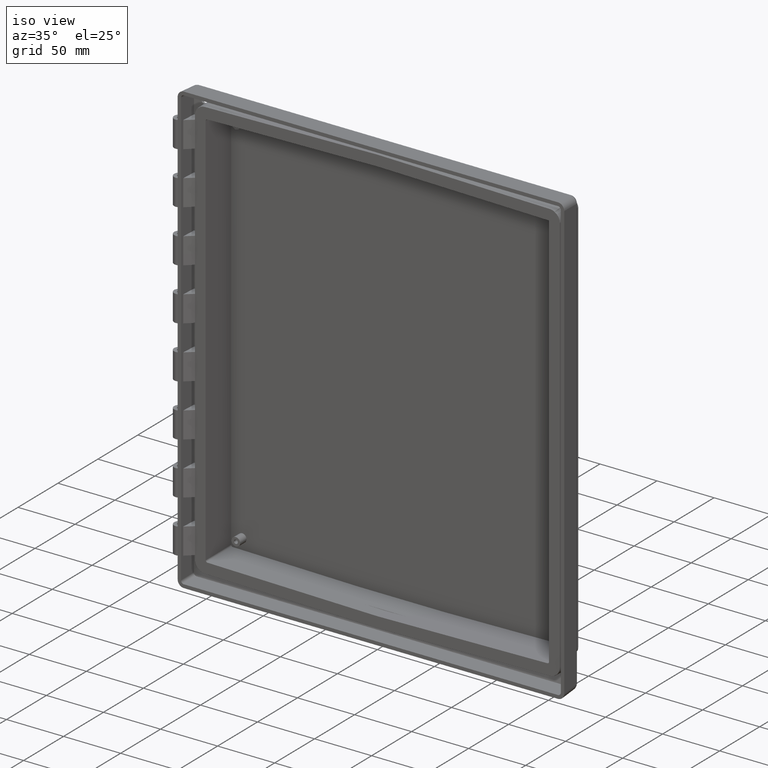
[diagram: clean part render]
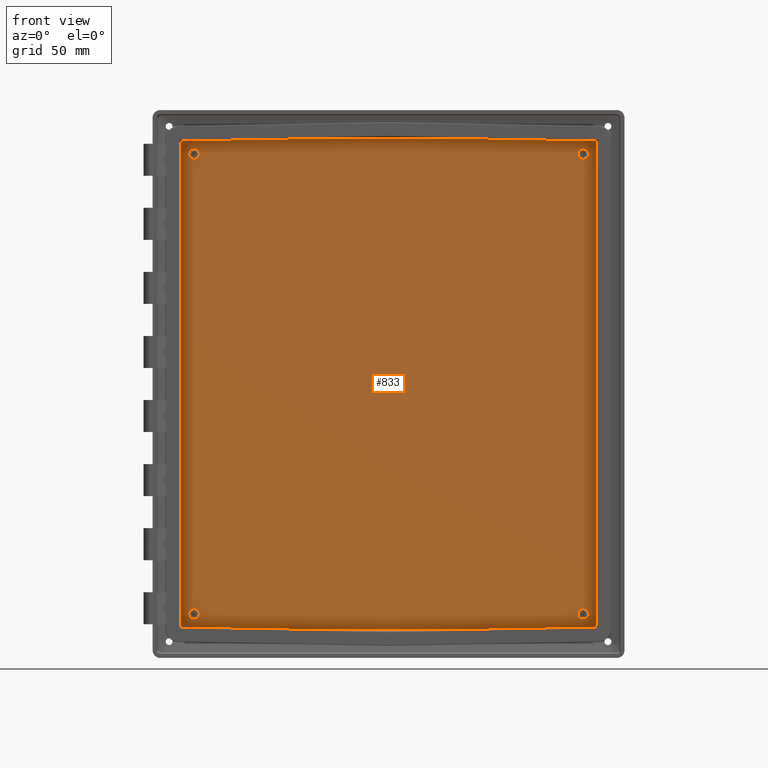
[diagram: tour spotlight — one face highlighted and labeled with its STEP entity id]
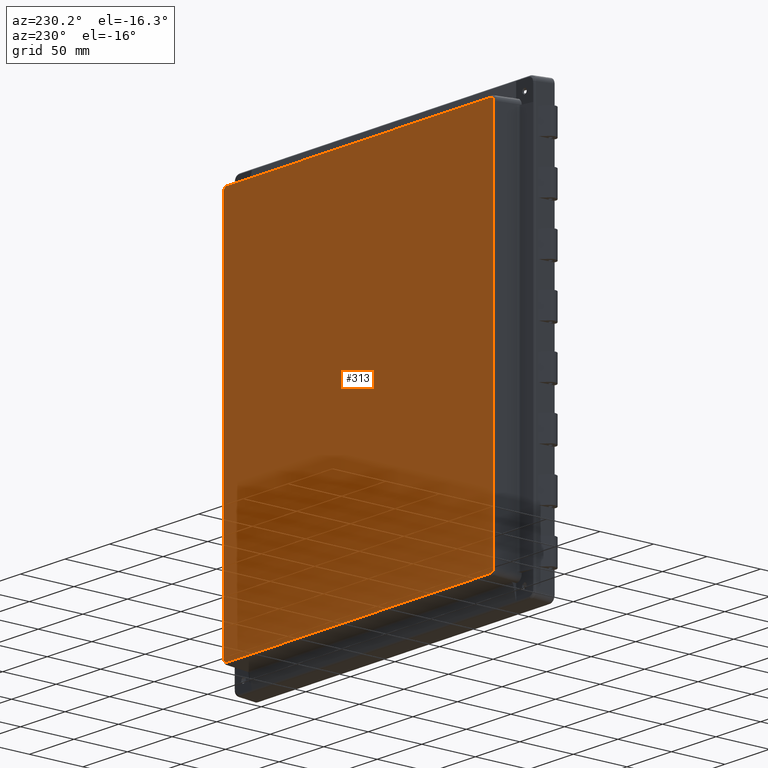
[diagram: tour spotlight — one face highlighted and labeled with its STEP entity id]
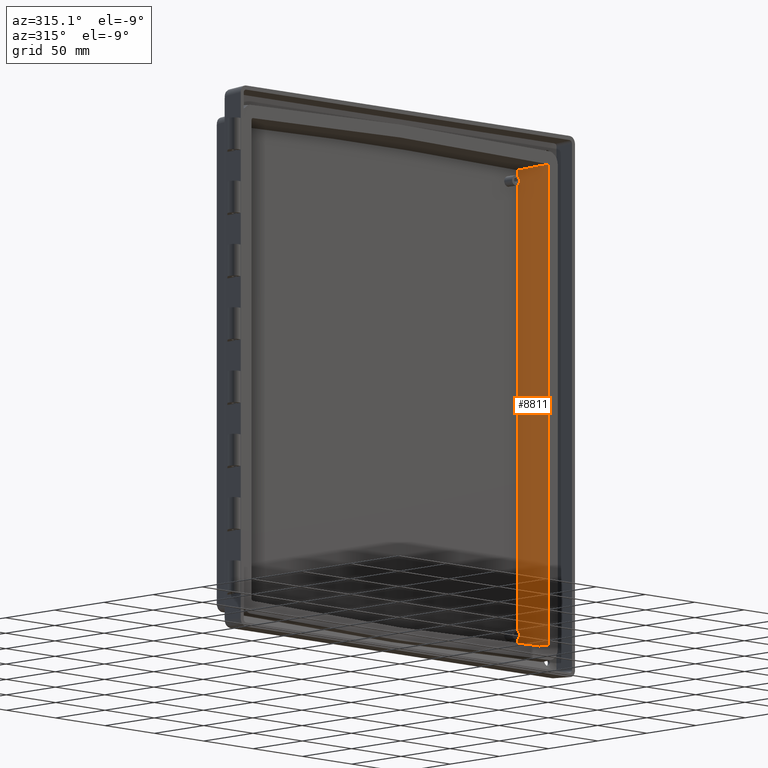
[diagram: tour spotlight — one face highlighted and labeled with its STEP entity id]
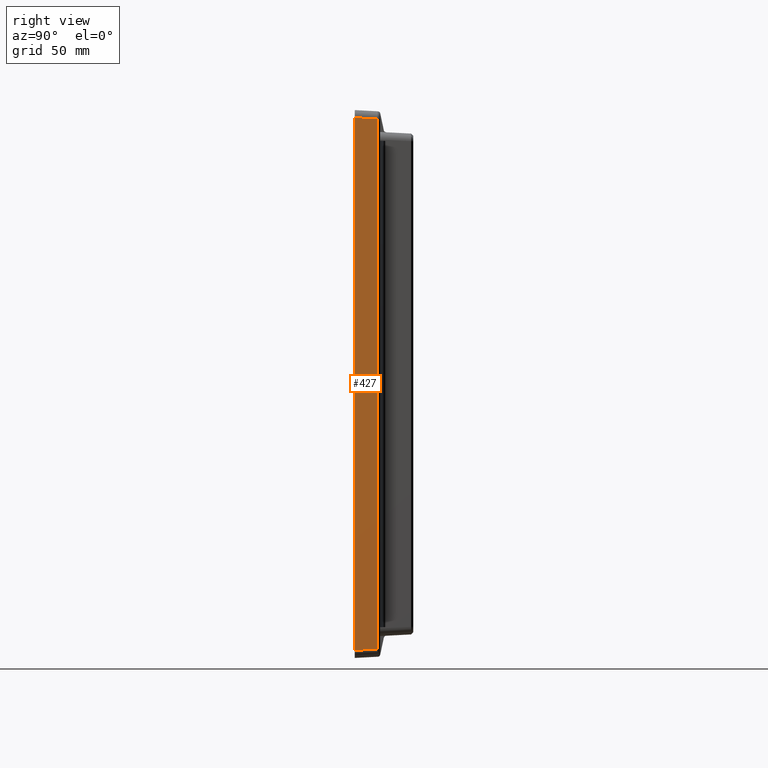
[diagram: tour spotlight — one face highlighted and labeled with its STEP entity id]
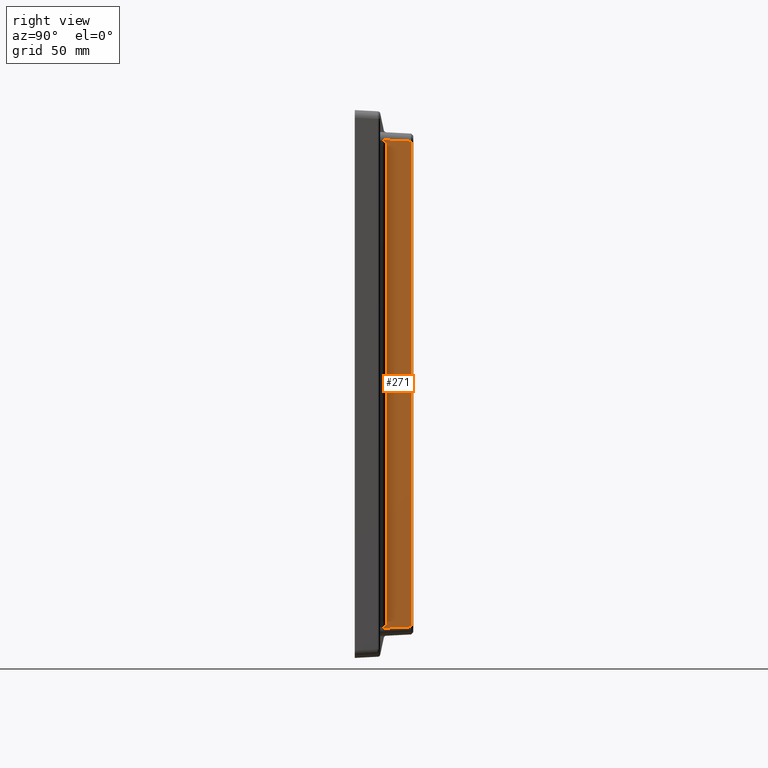
[diagram: tour spotlight — one face highlighted and labeled with its STEP entity id]
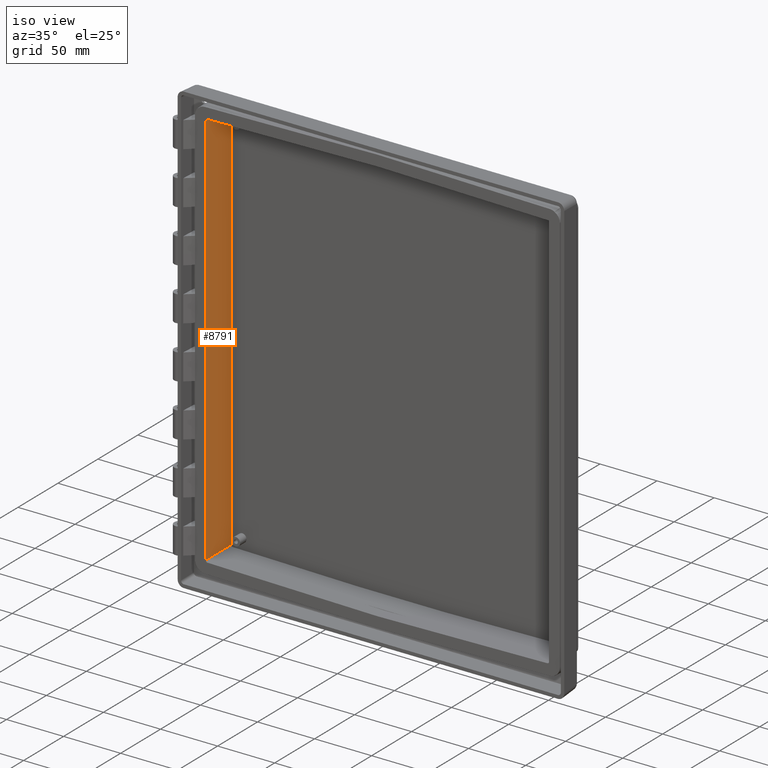
[diagram: tour spotlight — one face highlighted and labeled with its STEP entity id]
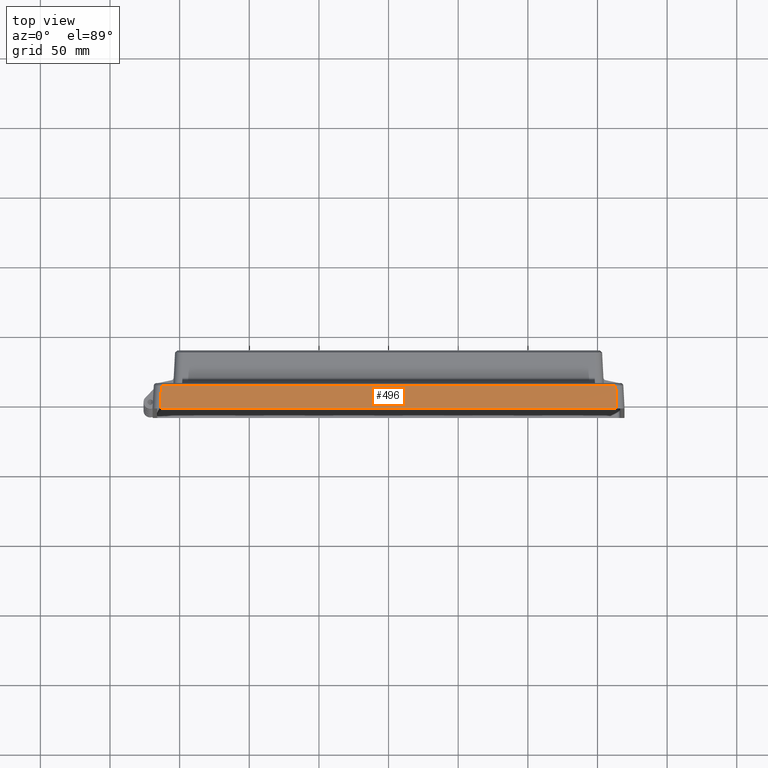
[diagram: tour spotlight — one face highlighted and labeled with its STEP entity id]
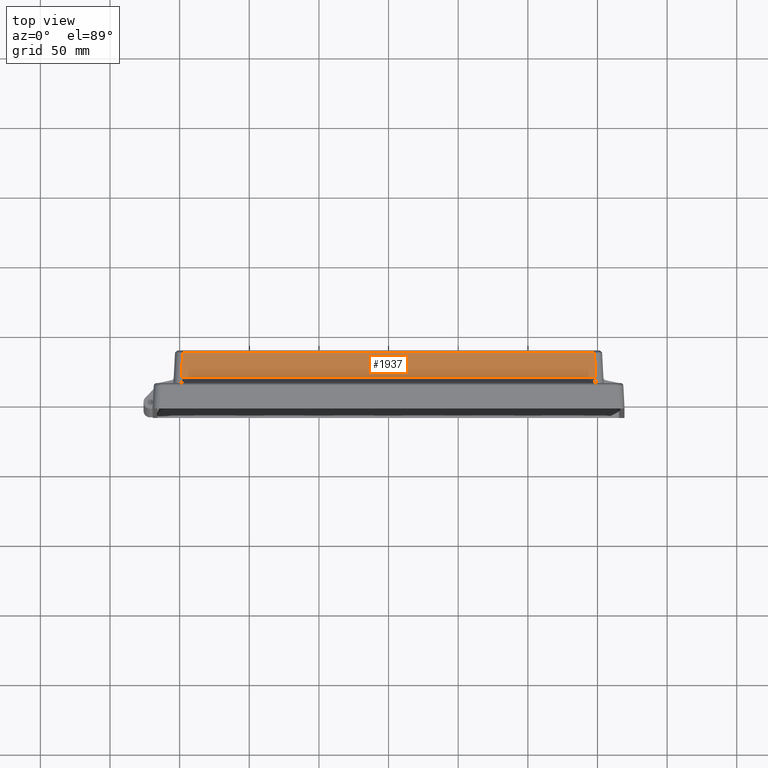
[diagram: tour spotlight — one face highlighted and labeled with its STEP entity id]
A machine part: a face-by-face anatomy tour. The part has 322 B-rep faces; the first image is the clean iso view, then the 8 largest visible faces are spotlighted one at a time (largest first), each with its STEP entity span.

Face 1 — front view, entity #833. In plain terms, the highlighted planar face has unit normal (0, 1, 0).
Definition (entity closure, byte-faithful):
#829 = EDGE_LOOP ( 'NONE', ( #9727, #9728 ) ) ;
#833 = ADVANCED_FACE ( 'NONE', ( #11162, #11161, #11138, #11137, #11136 ), #11134, .F. ) ;
#1398 = VERTEX_POINT ( 'NONE', #12270 ) ;
#1402 = EDGE_CURVE ( 'NONE', #1466, #1398, #12265, .T. ) ;
#1431 = VERTEX_POINT ( 'NONE', #12376 ) ;
#1434 = EDGE_CURVE ( 'NONE', #1431, #1435, #12371, .T. ) ;
#1435 = VERTEX_POINT ( 'NONE', #12366 ) ;
#1446 = VERTEX_POINT ( 'NONE', #12404 ) ;
#1452 = VERTEX_POINT ( 'NONE', #12435 ) ;
#1453 = VERTEX_POINT ( 'NONE', #12434 ) ;
#1455 = EDGE_CURVE ( 'NONE', #1452, #1453, #12433, .T. ) ;
#1466 = VERTEX_POINT ( 'NONE', #12465 ) ;
#1527 = EDGE_CURVE ( 'NONE', #1446, #1528, #12633, .T. ) ;
#1528 = VERTEX_POINT ( 'NONE', #12628 ) ;
#7629 = DIRECTION ( 'NONE',  ( 0.0000000000000000000, 0.0000000000000000000, 1.000000000000000000 ) ) ;
#7630 = DIRECTION ( 'NONE',  ( 0.0000000000000000000, 0.0000000000000000000, 1.000000000000000000 ) ) ;
#7631 = DIRECTION ( 'NONE',  ( -0.0000000000000000000, -1.000000000000000000, -0.0000000000000000000 ) ) ;
#7907 = DIRECTION ( 'NONE',  ( -0.0000000000000000000, -1.000000000000000000, -0.0000000000000000000 ) ) ;
#7908 = CARTESIAN_POINT ( 'NONE',  ( -139.7000000000000500, 30.40000000000000200, 165.0999999999999100 ) ) ;
#7909 = AXIS2_PLACEMENT_3D ( 'NONE', #7908, #7907, #7629 ) ;
#7910 = CIRCLE ( 'NONE', #7909, 3.750000000000003600 ) ;
#7934 =( BOUNDED_CURVE ( )  B_SPLINE_CURVE ( 3, ( #7991, #7990, #7989, #7988 ),
 .UNSPECIFIED., .F., .T. ) 
 B_SPLINE_CURVE_WITH_KNOTS ( ( 4, 4 ),
 ( 2.365519593132455500, 3.917665714047144900 ),
 .UNSPECIFIED. ) 
 CURVE ( )  GEOMETRIC_REPRESENTATION_ITEM ( )  RATIONAL_B_SPLINE_CURVE ( ( 1.000000000000000000, 0.8091131901567116800, 0.8091131901567116800, 1.000000000000000000 ) ) 
 REPRESENTATION_ITEM ( '' )  );
#7945 = CARTESIAN_POINT ( 'NONE',  ( 149.4019717250052400, 30.40000000000000200, -172.9836290982529200 ) ) ;
#7988 = CARTESIAN_POINT ( 'NONE',  ( 149.4019717250052400, 30.40000000000000200, -172.9836290982529200 ) ) ;
#7989 = CARTESIAN_POINT ( 'NONE',  ( 149.4019717250052700, 30.39999999999999900, -173.8498788729834000 ) ) ;
#7990 = CARTESIAN_POINT ( 'NONE',  ( 148.7951659875249400, 30.39999999999999900, -174.4673688775413600 ) ) ;
#7991 = CARTESIAN_POINT ( 'NONE',  ( 147.9290481468308900, 30.40000000000000200, -174.4824870206861100 ) ) ;
#8090 = DIRECTION ( 'NONE',  ( 0.0000000000000000000, 0.0000000000000000000, 1.000000000000000000 ) ) ;
#8091 = DIRECTION ( 'NONE',  ( -0.0000000000000000000, -1.000000000000000000, -0.0000000000000000000 ) ) ;
#8092 = CARTESIAN_POINT ( 'NONE',  ( -139.6999999999998700, 30.40000000000000200, -165.1000000000000200 ) ) ;
#8093 = AXIS2_PLACEMENT_3D ( 'NONE', #8092, #8091, #8090 ) ;
#8094 = CIRCLE ( 'NONE', #8093, 3.750000000000003600 ) ;
#8096 = CARTESIAN_POINT ( 'NONE',  ( -37.96020609379383600, 30.39999999999999900, 176.4020002988028200 ) ) ;
#8097 = CARTESIAN_POINT ( 'NONE',  ( 37.96020609379390000, 30.40000000000000900, 176.4020002988028200 ) ) ;
#8098 = DIRECTION ( 'NONE',  ( -0.9998476951563911600, -0.0000000000000000000, 0.01745240643728388300 ) ) ;
#8099 = VECTOR ( 'NONE', #8098, 1000.000000000000100 ) ;
#8100 = CARTESIAN_POINT ( 'NONE',  ( -0.01852732445308965700, 30.40000000000000200, 177.0649215565098000 ) ) ;
#8101 = LINE ( 'NONE', #8100, #8099 ) ;
#8102 = CARTESIAN_POINT ( 'NONE',  ( 149.4019717250052400, 30.40000000000000600, 174.4567770439946900 ) ) ;
#8103 = DIRECTION ( 'NONE',  ( -0.0000000000000000000, -0.0000000000000000000, 1.000000000000000000 ) ) ;
#8104 = VECTOR ( 'NONE', #8103, 1000.000000000000000 ) ;
#8105 = CARTESIAN_POINT ( 'NONE',  ( 149.4019717250052400, 30.40000000000000200, -175.5000000000000000 ) ) ;
#8106 = LINE ( 'NONE', #8105, #8104 ) ;
#8107 = CARTESIAN_POINT ( 'NONE',  ( 37.96020609379390000, 30.40000000000000900, -176.4020002988028200 ) ) ;
#8108 = DIRECTION ( 'NONE',  ( 1.000000000000000000, -0.0000000000000000000, -0.0000000000000000000 ) ) ;
#8109 = VECTOR ( 'NONE', #8108, 1000.000000000000000 ) ;
#8110 = CARTESIAN_POINT ( 'NONE',  ( -155.0000000000000000, 30.40000000000000200, -176.4020002988028200 ) ) ;
#8111 = LINE ( 'NONE', #8110, #8109 ) ;
#8112 = CARTESIAN_POINT ( 'NONE',  ( -37.96020609379383600, 30.39999999999999900, -176.4020002988028200 ) ) ;
#8113 = DIRECTION ( 'NONE',  ( 0.9998476951563911600, -0.0000000000000000000, -0.01745240643728388300 ) ) ;
#8114 = VECTOR ( 'NONE', #8113, 1000.000000000000100 ) ;
#8115 = CARTESIAN_POINT ( 'NONE',  ( -150.4450357931012800, 30.40000000000000200, -174.4385702929618600 ) ) ;
#8116 = CARTESIAN_POINT ( 'NONE',  ( -147.9290481468308400, 30.40000000000000200, -174.4824870206861100 ) ) ;
#8117 = CARTESIAN_POINT ( 'NONE',  ( -148.7951659875249400, 30.40000000000000600, -174.4673688775413300 ) ) ;
#8118 = CARTESIAN_POINT ( 'NONE',  ( -149.4019717250053200, 30.40000000000000600, -173.8498788729833100 ) ) ;
#8119 = CARTESIAN_POINT ( 'NONE',  ( -149.4019717250052400, 30.40000000000000200, -172.9836290982527800 ) ) ;
#8120 =( BOUNDED_CURVE ( )  B_SPLINE_CURVE ( 3, ( #8119, #8118, #8117, #8116 ),
 .UNSPECIFIED., .F., .T. ) 
 B_SPLINE_CURVE_WITH_KNOTS ( ( 4, 4 ),
 ( 2.365519593132348500, 3.917665714047167600 ),
 .UNSPECIFIED. ) 
 CURVE ( )  GEOMETRIC_REPRESENTATION_ITEM ( )  RATIONAL_B_SPLINE_CURVE ( ( 1.000000000000000000, 0.8091131901566812600, 0.8091131901566812600, 1.000000000000000000 ) ) 
 REPRESENTATION_ITEM ( '' )  );
#8121 = LINE ( 'NONE', #8115, #8114 ) ;
#8122 = CARTESIAN_POINT ( 'NONE',  ( -147.9290481468308400, 30.40000000000000200, -174.4824870206861100 ) ) ;
#8123 = CARTESIAN_POINT ( 'NONE',  ( -149.4019717250052400, 30.40000000000000200, -172.9836290982527800 ) ) ;
#8124 = CARTESIAN_POINT ( 'NONE',  ( -149.4019717250052400, 30.40000000000000200, 172.9836290982529200 ) ) ;
#8125 = DIRECTION ( 'NONE',  ( 0.0000000000000000000, -0.0000000000000000000, -1.000000000000000000 ) ) ;
#8126 = VECTOR ( 'NONE', #8125, 1000.000000000000000 ) ;
#8127 = CARTESIAN_POINT ( 'NONE',  ( -149.4019717250052400, 30.40000000000000200, 175.5000000000000000 ) ) ;
#8128 = LINE ( 'NONE', #8127, #8126 ) ;
#8131 = CARTESIAN_POINT ( 'NONE',  ( 139.6999999999999300, 30.40000000000000200, -165.0999999999999900 ) ) ;
#8132 = AXIS2_PLACEMENT_3D ( 'NONE', #8131, #7631, #7630 ) ;
#8133 = CIRCLE ( 'NONE', #8132, 3.750000000000003600 ) ;
#8134 = CARTESIAN_POINT ( 'NONE',  ( -149.4019717250052400, 30.40000000000000200, 172.9836290982529200 ) ) ;
#8135 = CARTESIAN_POINT ( 'NONE',  ( -149.4019717250052400, 30.40000000000000200, 173.8498788729834000 ) ) ;
#8136 = CARTESIAN_POINT ( 'NONE',  ( -148.7951659875248800, 30.40000000000000200, 174.4673688775413000 ) ) ;
#8137 = CARTESIAN_POINT ( 'NONE',  ( -147.9290481468308700, 30.40000000000000200, 174.4824870206861100 ) ) ;
#8138 =( BOUNDED_CURVE ( )  B_SPLINE_CURVE ( 3, ( #8137, #8136, #8135, #8134 ),
 .UNSPECIFIED., .F., .T. ) 
 B_SPLINE_CURVE_WITH_KNOTS ( ( 4, 4 ),
 ( 5.507112246722229500, 7.059258367636938500 ),
 .UNSPECIFIED. ) 
 CURVE ( )  GEOMETRIC_REPRESENTATION_ITEM ( )  RATIONAL_B_SPLINE_CURVE ( ( 1.000000000000000000, 0.8091131901567069100, 0.8091131901567069100, 1.000000000000000000 ) ) 
 REPRESENTATION_ITEM ( '' )  );
#8139 = CARTESIAN_POINT ( 'NONE',  ( -147.9290481468308700, 30.40000000000000200, 174.4824870206861100 ) ) ;
#8140 = DIRECTION ( 'NONE',  ( -0.9998476951563911600, -0.0000000000000000000, -0.01745240643728388300 ) ) ;
#8141 = VECTOR ( 'NONE', #8140, 1000.000000000000100 ) ;
#8142 = CARTESIAN_POINT ( 'NONE',  ( -150.4450357931012800, 30.40000000000000200, 174.4385702929618600 ) ) ;
#8143 = LINE ( 'NONE', #8142, #8141 ) ;
#8144 = DIRECTION ( 'NONE',  ( -1.000000000000000000, -0.0000000000000000000, -0.0000000000000000000 ) ) ;
#8145 = VECTOR ( 'NONE', #8144, 1000.000000000000000 ) ;
#8146 = CARTESIAN_POINT ( 'NONE',  ( -155.0000000000000000, 30.40000000000000200, 176.4020002988028200 ) ) ;
#8147 = LINE ( 'NONE', #8146, #8145 ) ;
#8148 = CARTESIAN_POINT ( 'NONE',  ( 147.9290481468308900, 30.40000000000000200, -174.4824870206861100 ) ) ;
#8149 = DIRECTION ( 'NONE',  ( 0.9998476951563911600, -0.0000000000000000000, 0.01745240643728388300 ) ) ;
#8150 = VECTOR ( 'NONE', #8149, 1000.000000000000100 ) ;
#8151 = CARTESIAN_POINT ( 'NONE',  ( -0.01852732445308965700, 30.40000000000000200, -177.0649215565098000 ) ) ;
#8152 = LINE ( 'NONE', #8151, #8150 ) ;
#8227 = DIRECTION ( 'NONE',  ( 0.0000000000000000000, 0.0000000000000000000, 1.000000000000000000 ) ) ;
#8228 = DIRECTION ( 'NONE',  ( -0.0000000000000000000, -1.000000000000000000, -0.0000000000000000000 ) ) ;
#8229 = CARTESIAN_POINT ( 'NONE',  ( 139.6999999999999300, 30.40000000000000200, 165.0999999999999900 ) ) ;
#8230 = AXIS2_PLACEMENT_3D ( 'NONE', #8229, #8228, #8227 ) ;
#8231 = CIRCLE ( 'NONE', #8230, 3.750000000000003600 ) ;
#9724 = EDGE_CURVE ( 'NONE', #9825, #9725, #7934, .T. ) ;
#9725 = VERTEX_POINT ( 'NONE', #7945 ) ;
#9726 = ORIENTED_EDGE ( 'NONE', *, *, #9793, .T. ) ;
#9727 = ORIENTED_EDGE ( 'NONE', *, *, #9802, .F. ) ;
#9728 = ORIENTED_EDGE ( 'NONE', *, *, #1527, .F. ) ;
#9793 = EDGE_CURVE ( 'NONE', #9725, #9794, #8106, .T. ) ;
#9794 = VERTEX_POINT ( 'NONE', #8102 ) ;
#9795 = ORIENTED_EDGE ( 'NONE', *, *, #9796, .T. ) ;
#9796 = EDGE_CURVE ( 'NONE', #9794, #9797, #8101, .T. ) ;
#9797 = VERTEX_POINT ( 'NONE', #8097 ) ;
#9798 = VERTEX_POINT ( 'NONE', #8096 ) ;
#9799 = EDGE_LOOP ( 'NONE', ( #9800, #9887 ) ) ;
#9800 = ORIENTED_EDGE ( 'NONE', *, *, #9886, .F. ) ;
#9801 = EDGE_LOOP ( 'NONE', ( #9810, #9814, #9817, #9820, #9823, #9803, #9726, #9795, #9826, #9828, #9831 ) ) ;
#9802 = EDGE_CURVE ( 'NONE', #1528, #1446, #8094, .T. ) ;
#9803 = ORIENTED_EDGE ( 'NONE', *, *, #9724, .T. ) ;
#9810 = ORIENTED_EDGE ( 'NONE', *, *, #9811, .T. ) ;
#9811 = EDGE_CURVE ( 'NONE', #9812, #9813, #8128, .T. ) ;
#9812 = VERTEX_POINT ( 'NONE', #8124 ) ;
#9813 = VERTEX_POINT ( 'NONE', #8123 ) ;
#9814 = ORIENTED_EDGE ( 'NONE', *, *, #9815, .T. ) ;
#9815 = EDGE_CURVE ( 'NONE', #9813, #9816, #8120, .T. ) ;
#9816 = VERTEX_POINT ( 'NONE', #8122 ) ;
#9817 = ORIENTED_EDGE ( 'NONE', *, *, #9818, .T. ) ;
#9818 = EDGE_CURVE ( 'NONE', #9816, #9819, #8121, .T. ) ;
#9819 = VERTEX_POINT ( 'NONE', #8112 ) ;
#9820 = ORIENTED_EDGE ( 'NONE', *, *, #9821, .T. ) ;
#9821 = EDGE_CURVE ( 'NONE', #9819, #9822, #8111, .T. ) ;
#9822 = VERTEX_POINT ( 'NONE', #8107 ) ;
#9823 = ORIENTED_EDGE ( 'NONE', *, *, #9824, .T. ) ;
#9824 = EDGE_CURVE ( 'NONE', #9822, #9825, #8152, .T. ) ;
#9825 = VERTEX_POINT ( 'NONE', #8148 ) ;
#9826 = ORIENTED_EDGE ( 'NONE', *, *, #9827, .T. ) ;
#9827 = EDGE_CURVE ( 'NONE', #9797, #9798, #8147, .T. ) ;
#9828 = ORIENTED_EDGE ( 'NONE', *, *, #9829, .T. ) ;
#9829 = EDGE_CURVE ( 'NONE', #9798, #9830, #8143, .T. ) ;
#9830 = VERTEX_POINT ( 'NONE', #8139 ) ;
#9831 = ORIENTED_EDGE ( 'NONE', *, *, #9832, .T. ) ;
#9832 = EDGE_CURVE ( 'NONE', #9830, #9812, #8138, .T. ) ;
#9833 = EDGE_LOOP ( 'NONE', ( #9834, #9836 ) ) ;
#9834 = ORIENTED_EDGE ( 'NONE', *, *, #9835, .F. ) ;
#9835 = EDGE_CURVE ( 'NONE', #1453, #1452, #8133, .T. ) ;
#9836 = ORIENTED_EDGE ( 'NONE', *, *, #1455, .F. ) ;
#9837 = EDGE_LOOP ( 'NONE', ( #9838, #9846 ) ) ;
#9838 = ORIENTED_EDGE ( 'NONE', *, *, #9839, .F. ) ;
#9839 = EDGE_CURVE ( 'NONE', #1435, #1431, #7910, .T. ) ;
#9846 = ORIENTED_EDGE ( 'NONE', *, *, #1434, .F. ) ;
#9886 = EDGE_CURVE ( 'NONE', #1398, #1466, #8231, .T. ) ;
#9887 = ORIENTED_EDGE ( 'NONE', *, *, #1402, .F. ) ;
#11134 = PLANE ( 'NONE',  #11135 ) ;
#11135 = AXIS2_PLACEMENT_3D ( 'NONE', #11194, #11193, #11192 ) ;
#11136 = FACE_BOUND ( 'NONE', #9837, .T. ) ;
#11137 = FACE_BOUND ( 'NONE', #9833, .T. ) ;
#11138 = FACE_OUTER_BOUND ( 'NONE', #9801, .T. ) ;
#11161 = FACE_BOUND ( 'NONE', #9799, .T. ) ;
#11162 = FACE_BOUND ( 'NONE', #829, .T. ) ;
#11192 = DIRECTION ( 'NONE',  ( 0.0000000000000000000, -0.0000000000000000000, 1.000000000000000000 ) ) ;
#11193 = DIRECTION ( 'NONE',  ( 0.0000000000000000000, 1.000000000000000000, 0.0000000000000000000 ) ) ;
#11194 = CARTESIAN_POINT ( 'NONE',  ( -155.0000000000000000, 30.40000000000000200, 181.5000000000000000 ) ) ;
#12261 = DIRECTION ( 'NONE',  ( 0.0000000000000000000, 0.0000000000000000000, 1.000000000000000000 ) ) ;
#12262 = DIRECTION ( 'NONE',  ( -0.0000000000000000000, -1.000000000000000000, -0.0000000000000000000 ) ) ;
#12263 = CARTESIAN_POINT ( 'NONE',  ( 139.6999999999999300, 30.40000000000000200, 165.0999999999999900 ) ) ;
#12264 = AXIS2_PLACEMENT_3D ( 'NONE', #12263, #12262, #12261 ) ;
#12265 = CIRCLE ( 'NONE', #12264, 3.750000000000003600 ) ;
#12270 = CARTESIAN_POINT ( 'NONE',  ( 139.6999999999999300, 30.40000000000000200, 168.8499999999999900 ) ) ;
#12366 = CARTESIAN_POINT ( 'NONE',  ( -139.7000000000000500, 30.40000000000000200, 168.8499999999999100 ) ) ;
#12367 = DIRECTION ( 'NONE',  ( 0.0000000000000000000, 0.0000000000000000000, 1.000000000000000000 ) ) ;
#12368 = DIRECTION ( 'NONE',  ( -0.0000000000000000000, -1.000000000000000000, -0.0000000000000000000 ) ) ;
#12369 = CARTESIAN_POINT ( 'NONE',  ( -139.7000000000000500, 30.40000000000000200, 165.0999999999999100 ) ) ;
#12370 = AXIS2_PLACEMENT_3D ( 'NONE', #12369, #12368, #12367 ) ;
#12371 = CIRCLE ( 'NONE', #12370, 3.750000000000003600 ) ;
#12376 = CARTESIAN_POINT ( 'NONE',  ( -139.7000000000000500, 30.40000000000000200, 161.3499999999999100 ) ) ;
#12404 = CARTESIAN_POINT ( 'NONE',  ( -139.6999999999998700, 30.40000000000000200, -168.8500000000000200 ) ) ;
#12429 = DIRECTION ( 'NONE',  ( 0.0000000000000000000, 0.0000000000000000000, 1.000000000000000000 ) ) ;
#12430 = DIRECTION ( 'NONE',  ( -0.0000000000000000000, -1.000000000000000000, -0.0000000000000000000 ) ) ;
#12431 = CARTESIAN_POINT ( 'NONE',  ( 139.6999999999999300, 30.40000000000000200, -165.0999999999999900 ) ) ;
#12432 = AXIS2_PLACEMENT_3D ( 'NONE', #12431, #12430, #12429 ) ;
#12433 = CIRCLE ( 'NONE', #12432, 3.750000000000003600 ) ;
#12434 = CARTESIAN_POINT ( 'NONE',  ( 139.6999999999999300, 30.40000000000000200, -161.3499999999999900 ) ) ;
#12435 = CARTESIAN_POINT ( 'NONE',  ( 139.6999999999999300, 30.40000000000000200, -168.8499999999999900 ) ) ;
#12465 = CARTESIAN_POINT ( 'NONE',  ( 139.6999999999999300, 30.40000000000000200, 161.3499999999999900 ) ) ;
#12628 = CARTESIAN_POINT ( 'NONE',  ( -139.6999999999998700, 30.40000000000000200, -161.3500000000000200 ) ) ;
#12629 = DIRECTION ( 'NONE',  ( 0.0000000000000000000, 0.0000000000000000000, 1.000000000000000000 ) ) ;
#12630 = DIRECTION ( 'NONE',  ( -0.0000000000000000000, -1.000000000000000000, -0.0000000000000000000 ) ) ;
#12631 = CARTESIAN_POINT ( 'NONE',  ( -139.6999999999998700, 30.40000000000000200, -165.1000000000000200 ) ) ;
#12632 = AXIS2_PLACEMENT_3D ( 'NONE', #12631, #12630, #12629 ) ;
#12633 = CIRCLE ( 'NONE', #12632, 3.750000000000003600 ) ;

Face 2 — auxiliary view, entity #313. In plain terms, the highlighted planar face has unit normal (0, 1, 0).
Definition (entity closure, byte-faithful):
#297 = EDGE_CURVE ( 'NONE', #324, #326, #3751, .T. ) ;
#298 = ORIENTED_EDGE ( 'NONE', *, *, #299, .T. ) ;
#299 = EDGE_CURVE ( 'NONE', #326, #300, #3749, .T. ) ;
#300 = VERTEX_POINT ( 'NONE', #3723 ) ;
#301 = ORIENTED_EDGE ( 'NONE', *, *, #302, .T. ) ;
#302 = EDGE_CURVE ( 'NONE', #300, #303, #3716, .T. ) ;
#303 = VERTEX_POINT ( 'NONE', #3722 ) ;
#304 = ORIENTED_EDGE ( 'NONE', *, *, #305, .T. ) ;
#305 = EDGE_CURVE ( 'NONE', #303, #306, #3721, .T. ) ;
#306 = VERTEX_POINT ( 'NONE', #3816 ) ;
#307 = ORIENTED_EDGE ( 'NONE', *, *, #308, .T. ) ;
#308 = EDGE_CURVE ( 'NONE', #306, #317, #3809, .T. ) ;
#313 = ADVANCED_FACE ( 'NONE', ( #3766 ), #3764, .T. ) ;
#314 = EDGE_LOOP ( 'NONE', ( #315, #319, #322, #325, #298, #301, #304, #307 ) ) ;
#315 = ORIENTED_EDGE ( 'NONE', *, *, #316, .T. ) ;
#316 = EDGE_CURVE ( 'NONE', #317, #318, #3759, .T. ) ;
#317 = VERTEX_POINT ( 'NONE', #3878 ) ;
#318 = VERTEX_POINT ( 'NONE', #3876 ) ;
#319 = ORIENTED_EDGE ( 'NONE', *, *, #320, .T. ) ;
#320 = EDGE_CURVE ( 'NONE', #318, #321, #3871, .T. ) ;
#321 = VERTEX_POINT ( 'NONE', #3869 ) ;
#322 = ORIENTED_EDGE ( 'NONE', *, *, #323, .T. ) ;
#323 = EDGE_CURVE ( 'NONE', #321, #324, #3872, .T. ) ;
#324 = VERTEX_POINT ( 'NONE', #3838 ) ;
#325 = ORIENTED_EDGE ( 'NONE', *, *, #297, .T. ) ;
#326 = VERTEX_POINT ( 'NONE', #3836 ) ;
#3689 = CARTESIAN_POINT ( 'NONE',  ( 151.6330037502764600, 34.00000000000000000, 174.3041769975908700 ) ) ;
#3690 = CARTESIAN_POINT ( 'NONE',  ( 151.6348593914733000, 34.00000000000000000, 174.8059933008251500 ) ) ;
#3691 = CARTESIAN_POINT ( 'NONE',  ( 151.5372547930608100, 34.00000000000001400, 175.2942391105824000 ) ) ;
#3692 = CARTESIAN_POINT ( 'NONE',  ( 151.1431251170169500, 34.00000000000000000, 176.2435897431427300 ) ) ;
#3693 = CARTESIAN_POINT ( 'NONE',  ( 150.8675752403602500, 34.00000000000000000, 176.6569440721336000 ) ) ;
#3695 = CARTESIAN_POINT ( 'NONE',  ( 150.1568282157539300, 34.00000000000000000, 177.3674593839804500 ) ) ;
#3697 = CARTESIAN_POINT ( 'NONE',  ( 149.7418262364449500, 34.00000000000000700, 177.6440281517859000 ) ) ;
#3699 = CARTESIAN_POINT ( 'NONE',  ( 149.0324585220715200, 34.00000000000000000, 177.9382708566650700 ) ) ;
#3701 = CARTESIAN_POINT ( 'NONE',  ( 148.7905390636747400, 34.00000000000000000, 178.0123885963522200 ) ) ;
#3702 = CARTESIAN_POINT ( 'NONE',  ( 148.3022932539175300, 33.99999999999999300, 178.1099931947647700 ) ) ;
#3703 = CARTESIAN_POINT ( 'NONE',  ( 148.0548802001825400, 34.00000000000000000, 178.1339308130040400 ) ) ;
#3704 = CARTESIAN_POINT ( 'NONE',  ( 147.8041769975909900, 34.00000000000000000, 178.1330037502763700 ) ) ;
#3705 = VECTOR ( 'NONE', #3817, 1000.000000000000000 ) ;
#3708 = CARTESIAN_POINT ( 'NONE',  ( 151.6330037502764600, 34.00000000000000000, -174.2256730632264500 ) ) ;
#3716 = B_SPLINE_CURVE_WITH_KNOTS ( 'NONE', 3,
 ( #3704, #3703, #3702, #3701, #3699, #3697, #3695, #3693, #3692, #3691, #3690, #3689 ),
 .UNSPECIFIED., .F., .F.,
 ( 4, 2, 2, 2, 2, 4 ),
 ( 0.0000000000000000000, 0.1249999999999933400, 0.2499999999999866800, 0.4999999999999911200, 0.7499999999999955600, 1.000000000000000000 ),
 .UNSPECIFIED. ) ;
#3721 = LINE ( 'NONE', #3708, #3705 ) ;
#3722 = CARTESIAN_POINT ( 'NONE',  ( 151.6330037502764600, 34.00000000000000000, 174.3041769975908700 ) ) ;
#3723 = CARTESIAN_POINT ( 'NONE',  ( 147.8041769975909900, 34.00000000000000000, 178.1330037502763700 ) ) ;
#3724 = CARTESIAN_POINT ( 'NONE',  ( -147.8041769975908400, 34.00000000000000000, 178.1330037502763700 ) ) ;
#3725 = CARTESIAN_POINT ( 'NONE',  ( -148.3059933008700600, 33.99999999999999300, 178.1348593914733300 ) ) ;
#3727 = CARTESIAN_POINT ( 'NONE',  ( -148.7942391106272700, 34.00000000000000000, 178.0372547930607300 ) ) ;
#3729 = CARTESIAN_POINT ( 'NONE',  ( -149.7435897430977700, 34.00000000000000700, 177.6431251170167500 ) ) ;
#3731 = CARTESIAN_POINT ( 'NONE',  ( -150.1569440721260100, 34.00000000000000700, 177.3675752403445600 ) ) ;
#3733 = CARTESIAN_POINT ( 'NONE',  ( -150.8674593839879500, 34.00000000000000700, 176.6568282157695100 ) ) ;
#3735 = CARTESIAN_POINT ( 'NONE',  ( -151.1440281517493800, 34.00000000000000000, 176.2418262365046400 ) ) ;
#3736 = CARTESIAN_POINT ( 'NONE',  ( -151.4382708566834300, 34.00000000000000000, 175.5324585220415400 ) ) ;
#3737 = CARTESIAN_POINT ( 'NONE',  ( -151.5123885963523700, 33.99999999999999300, 175.2905390636958900 ) ) ;
#3738 = CARTESIAN_POINT ( 'NONE',  ( -151.6099931947649400, 34.00000000000000000, 174.8022932539387000 ) ) ;
#3739 = CARTESIAN_POINT ( 'NONE',  ( -151.6339308130042100, 34.00000000000000700, 174.5548802001965800 ) ) ;
#3741 = CARTESIAN_POINT ( 'NONE',  ( -151.6330037502763700, 34.00000000000000000, 174.3041769975908700 ) ) ;
#3743 = DIRECTION ( 'NONE',  ( 1.000000000000000000, 0.0000000000000000000, 0.0000000000000000000 ) ) ;
#3745 = VECTOR ( 'NONE', #3743, 1000.000000000000000 ) ;
#3747 = CARTESIAN_POINT ( 'NONE',  ( 147.7256730632264500, 34.00000000000000000, 178.1330037502763700 ) ) ;
#3749 = LINE ( 'NONE', #3747, #3745 ) ;
#3751 = B_SPLINE_CURVE_WITH_KNOTS ( 'NONE', 3,
 ( #3741, #3739, #3738, #3737, #3736, #3735, #3733, #3731, #3729, #3727, #3725, #3724 ),
 .UNSPECIFIED., .F., .F.,
 ( 4, 2, 2, 2, 2, 4 ),
 ( 0.0000000000000000000, 0.1249999999999952800, 0.2499999999999905600, 0.4999999999999936700, 0.7499999999999967800, 1.000000000000000000 ),
 .UNSPECIFIED. ) ;
#3754 = DIRECTION ( 'NONE',  ( 0.0000000000000000000, -0.0000000000000000000, 1.000000000000000000 ) ) ;
#3756 = DIRECTION ( 'NONE',  ( 0.0000000000000000000, 1.000000000000000000, 0.0000000000000000000 ) ) ;
#3758 = AXIS2_PLACEMENT_3D ( 'NONE', #3763, #3756, #3754 ) ;
#3759 = LINE ( 'NONE', #3884, #3883 ) ;
#3763 = CARTESIAN_POINT ( 'NONE',  ( -155.0000000000000000, 34.00000000000000000, 181.5000000000000000 ) ) ;
#3764 = PLANE ( 'NONE',  #3758 ) ;
#3766 = FACE_OUTER_BOUND ( 'NONE', #314, .T. ) ;
#3777 = CARTESIAN_POINT ( 'NONE',  ( 147.8041769975908700, 34.00000000000000000, -178.1330037502764000 ) ) ;
#3779 = CARTESIAN_POINT ( 'NONE',  ( 148.3059933008134100, 34.00000000000000000, -178.1348593914731000 ) ) ;
#3781 = CARTESIAN_POINT ( 'NONE',  ( 148.7942391105706600, 34.00000000000000000, -178.0372547930605500 ) ) ;
#3783 = CARTESIAN_POINT ( 'NONE',  ( 149.7435897431545000, 34.00000000000000000, -177.6431251170169200 ) ) ;
#3785 = CARTESIAN_POINT ( 'NONE',  ( 150.1569440720856200, 34.00000000000000700, -177.3675752403849200 ) ) ;
#3786 = CARTESIAN_POINT ( 'NONE',  ( 150.8674593840284500, 33.99999999999999300, -176.6568282157290100 ) ) ;
#3787 = CARTESIAN_POINT ( 'NONE',  ( 151.1440281517256200, 34.00000000000000700, -176.2418262365283100 ) ) ;
#3788 = CARTESIAN_POINT ( 'NONE',  ( 151.4382708566953400, 34.00000000000000700, -175.5324585220296600 ) ) ;
#3789 = CARTESIAN_POINT ( 'NONE',  ( 151.5123885963524500, 34.00000000000000000, -175.2905390637208400 ) ) ;
#3791 = CARTESIAN_POINT ( 'NONE',  ( 151.6099931947651400, 33.99999999999999300, -174.8022932539635700 ) ) ;
#3794 = CARTESIAN_POINT ( 'NONE',  ( 151.6339308130042700, 34.00000000000000000, -174.5548802002131500 ) ) ;
#3796 = CARTESIAN_POINT ( 'NONE',  ( 151.6330037502764600, 34.00000000000000000, -174.3041769975908200 ) ) ;
#3809 = B_SPLINE_CURVE_WITH_KNOTS ( 'NONE', 3,
 ( #3796, #3794, #3791, #3789, #3788, #3787, #3786, #3785, #3783, #3781, #3779, #3777 ),
 .UNSPECIFIED., .F., .F.,
 ( 4, 2, 2, 2, 2, 4 ),
 ( 0.0000000000000000000, 0.1250000000000066600, 0.2500000000000133200, 0.5000000000000088800, 0.7500000000000044400, 1.000000000000000000 ),
 .UNSPECIFIED. ) ;
#3816 = CARTESIAN_POINT ( 'NONE',  ( 151.6330037502764600, 34.00000000000000000, -174.3041769975908200 ) ) ;
#3817 = DIRECTION ( 'NONE',  ( -1.529232816288094800E-016, 0.0000000000000000000, -1.000000000000000000 ) ) ;
#3836 = CARTESIAN_POINT ( 'NONE',  ( -147.8041769975908400, 34.00000000000000000, 178.1330037502763700 ) ) ;
#3838 = CARTESIAN_POINT ( 'NONE',  ( -151.6330037502763700, 34.00000000000000000, 174.3041769975908700 ) ) ;
#3841 = CARTESIAN_POINT ( 'NONE',  ( -151.6330037502764300, 34.00000000000000000, -174.3041769975908700 ) ) ;
#3843 = CARTESIAN_POINT ( 'NONE',  ( -151.6348593914732400, 34.00000000000000000, -174.8059933008369500 ) ) ;
#3845 = CARTESIAN_POINT ( 'NONE',  ( -151.5372547930607000, 34.00000000000000700, -175.2942391105941900 ) ) ;
#3847 = CARTESIAN_POINT ( 'NONE',  ( -151.1431251170168400, 33.99999999999999300, -176.2435897431308500 ) ) ;
#3849 = CARTESIAN_POINT ( 'NONE',  ( -150.8675752403518100, 34.00000000000001400, -176.6569440721420100 ) ) ;
#3851 = CARTESIAN_POINT ( 'NONE',  ( -150.1568282157623200, 33.99999999999999300, -177.3674593839719800 ) ) ;
#3854 = CARTESIAN_POINT ( 'NONE',  ( -149.7418262364566300, 34.00000000000000700, -177.6440281517740200 ) ) ;
#3856 = CARTESIAN_POINT ( 'NONE',  ( -149.0324585220655500, 34.00000000000000000, -177.9382708566710400 ) ) ;
#3858 = CARTESIAN_POINT ( 'NONE',  ( -148.7905390636872200, 34.00000000000000700, -178.0123885963523400 ) ) ;
#3859 = CARTESIAN_POINT ( 'NONE',  ( -148.3022932539299700, 34.00000000000000000, -178.1099931947648500 ) ) ;
#3860 = CARTESIAN_POINT ( 'NONE',  ( -148.0548802001907800, 34.00000000000001400, -178.1339308130041800 ) ) ;
#3861 = CARTESIAN_POINT ( 'NONE',  ( -147.8041769975909000, 34.00000000000000000, -178.1330037502763400 ) ) ;
#3862 = DIRECTION ( 'NONE',  ( 1.529232816288094800E-016, 0.0000000000000000000, 1.000000000000000000 ) ) ;
#3864 = VECTOR ( 'NONE', #3862, 1000.000000000000000 ) ;
#3865 = CARTESIAN_POINT ( 'NONE',  ( -151.6330037502763700, 34.00000000000000000, 174.2256730632263400 ) ) ;
#3869 = CARTESIAN_POINT ( 'NONE',  ( -151.6330037502764300, 34.00000000000000000, -174.3041769975908700 ) ) ;
#3871 = B_SPLINE_CURVE_WITH_KNOTS ( 'NONE', 3,
 ( #3861, #3860, #3859, #3858, #3856, #3854, #3851, #3849, #3847, #3845, #3843, #3841 ),
 .UNSPECIFIED., .F., .F.,
 ( 4, 2, 2, 2, 2, 4 ),
 ( 0.0000000000000000000, 0.1250000000000019700, 0.2500000000000039400, 0.5000000000000026600, 0.7500000000000013300, 1.000000000000000000 ),
 .UNSPECIFIED. ) ;
#3872 = LINE ( 'NONE', #3865, #3864 ) ;
#3876 = CARTESIAN_POINT ( 'NONE',  ( -147.8041769975909000, 34.00000000000000000, -178.1330037502763400 ) ) ;
#3878 = CARTESIAN_POINT ( 'NONE',  ( 147.8041769975908700, 34.00000000000000000, -178.1330037502764000 ) ) ;
#3881 = DIRECTION ( 'NONE',  ( -1.000000000000000000, 0.0000000000000000000, 0.0000000000000000000 ) ) ;
#3883 = VECTOR ( 'NONE', #3881, 1000.000000000000000 ) ;
#3884 = CARTESIAN_POINT ( 'NONE',  ( -147.7256730632265100, 34.00000000000000000, -178.1330037502763400 ) ) ;

Face 3 — auxiliary view, entity #8811. In plain terms, the highlighted planar face has unit normal (-0.9994, -0.0349, 0).
Definition (entity closure, byte-faithful):
#1899 = EDGE_CURVE ( 'NONE', #9725, #9901, #13381, .T. ) ;
#2488 = VERTEX_POINT ( 'NONE', #4962 ) ;
#3010 = DIRECTION ( 'NONE',  ( 0.03487899055459543100, -0.9988036077738137200, 0.03427548855823892700 ) ) ;
#3011 = VECTOR ( 'NONE', #3010, 1000.000000000000100 ) ;
#3014 = CARTESIAN_POINT ( 'NONE',  ( 150.0439445685257700, 12.01630305219287600, 175.0876420003169500 ) ) ;
#3017 = DIRECTION ( 'NONE',  ( 0.03489949670250104600, -0.9993908270190956500, 0.0000000000000000000 ) ) ;
#3018 = DIRECTION ( 'NONE',  ( -0.9993908270190957600, -0.03489949670250105200, 0.0000000000000000000 ) ) ;
#3019 = CARTESIAN_POINT ( 'NONE',  ( 150.4635631175543700, 3.469446951953614200E-015, -175.5000000000000000 ) ) ;
#3020 = LINE ( 'NONE', #3014, #3011 ) ;
#3022 = AXIS2_PLACEMENT_3D ( 'NONE', #3019, #3018, #3017 ) ;
#3023 = FACE_OUTER_BOUND ( 'NONE', #8812, .T. ) ;
#3028 = PLANE ( 'NONE',  #3022 ) ;
#4962 = CARTESIAN_POINT ( 'NONE',  ( 150.4635631175543700, 3.469446951953614200E-015, 175.5000000000000000 ) ) ;
#7945 = CARTESIAN_POINT ( 'NONE',  ( 149.4019717250052400, 30.40000000000000200, -172.9836290982529200 ) ) ;
#8102 = CARTESIAN_POINT ( 'NONE',  ( 149.4019717250052400, 30.40000000000000600, 174.4567770439946900 ) ) ;
#8103 = DIRECTION ( 'NONE',  ( -0.0000000000000000000, -0.0000000000000000000, 1.000000000000000000 ) ) ;
#8104 = VECTOR ( 'NONE', #8103, 1000.000000000000000 ) ;
#8105 = CARTESIAN_POINT ( 'NONE',  ( 149.4019717250052400, 30.40000000000000200, -175.5000000000000000 ) ) ;
#8106 = LINE ( 'NONE', #8105, #8104 ) ;
#8251 = CARTESIAN_POINT ( 'NONE',  ( 150.4635631175543700, 3.469446951953614200E-015, -174.0268520542580900 ) ) ;
#8252 = DIRECTION ( 'NONE',  ( 0.0000000000000000000, 0.0000000000000000000, 1.000000000000000000 ) ) ;
#8253 = VECTOR ( 'NONE', #8252, 1000.000000000000000 ) ;
#8254 = CARTESIAN_POINT ( 'NONE',  ( 150.4635631175543700, 3.469446951953614200E-015, -175.5000000000000000 ) ) ;
#8255 = LINE ( 'NONE', #8254, #8253 ) ;
#8811 = ADVANCED_FACE ( 'NONE', ( #3023 ), #3028, .T. ) ;
#8812 = EDGE_LOOP ( 'NONE', ( #8813, #8814, #8815, #8816 ) ) ;
#8813 = ORIENTED_EDGE ( 'NONE', *, *, #9793, .F. ) ;
#8814 = ORIENTED_EDGE ( 'NONE', *, *, #1899, .T. ) ;
#8815 = ORIENTED_EDGE ( 'NONE', *, *, #9899, .T. ) ;
#8816 = ORIENTED_EDGE ( 'NONE', *, *, #8817, .F. ) ;
#8817 = EDGE_CURVE ( 'NONE', #9794, #2488, #3020, .T. ) ;
#9725 = VERTEX_POINT ( 'NONE', #7945 ) ;
#9793 = EDGE_CURVE ( 'NONE', #9725, #9794, #8106, .T. ) ;
#9794 = VERTEX_POINT ( 'NONE', #8102 ) ;
#9899 = EDGE_CURVE ( 'NONE', #9901, #2488, #8255, .T. ) ;
#9901 = VERTEX_POINT ( 'NONE', #8251 ) ;
#13378 = DIRECTION ( 'NONE',  ( 0.03487899055459543800, -0.9988036077738138300, -0.03427548855823893400 ) ) ;
#13379 = VECTOR ( 'NONE', #13378, 999.9999999999998900 ) ;
#13380 = CARTESIAN_POINT ( 'NONE',  ( 150.4653242577352900, -0.05043245628703450100, -174.0285827218938300 ) ) ;
#13381 = LINE ( 'NONE', #13380, #13379 ) ;

Face 4 — right view, entity #427. In plain terms, the highlighted planar face has unit normal (0.9986, 0.0523, 0).
Definition (entity closure, byte-faithful):
#1 = EDGE_CURVE ( 'NONE', #10, #2, #9934, .T. ) ;
#2 = VERTEX_POINT ( 'NONE', #9936 ) ;
#10 = VERTEX_POINT ( 'NONE', #9981 ) ;
#427 = ADVANCED_FACE ( 'NONE', ( #10280 ), #10265, .T. ) ;
#428 = EDGE_LOOP ( 'NONE', ( #429, #431, #432, #492, #493, #495 ) ) ;
#429 = ORIENTED_EDGE ( 'NONE', *, *, #430, .T. ) ;
#430 = EDGE_CURVE ( 'NONE', #1331, #10, #10260, .T. ) ;
#431 = ORIENTED_EDGE ( 'NONE', *, *, #1, .T. ) ;
#432 = ORIENTED_EDGE ( 'NONE', *, *, #491, .T. ) ;
#433 = EDGE_CURVE ( 'NONE', #458, #460, #10307, .T. ) ;
#458 = VERTEX_POINT ( 'NONE', #10332 ) ;
#460 = VERTEX_POINT ( 'NONE', #10331 ) ;
#491 = EDGE_CURVE ( 'NONE', #2, #460, #10369, .T. ) ;
#492 = ORIENTED_EDGE ( 'NONE', *, *, #433, .F. ) ;
#493 = ORIENTED_EDGE ( 'NONE', *, *, #494, .T. ) ;
#494 = EDGE_CURVE ( 'NONE', #458, #14153, #10365, .T. ) ;
#495 = ORIENTED_EDGE ( 'NONE', *, *, #1318, .T. ) ;
#1318 = EDGE_CURVE ( 'NONE', #14153, #1331, #12099, .T. ) ;
#1331 = VERTEX_POINT ( 'NONE', #12129 ) ;
#8680 = CARTESIAN_POINT ( 'NONE',  ( 168.5576748016012200, 8.440067571076291100, -190.3152123604508300 ) ) ;
#9932 = CARTESIAN_POINT ( 'NONE',  ( 168.5562397905034100, 8.467449213979881200, 189.2464257797896000 ) ) ;
#9933 = CARTESIAN_POINT ( 'NONE',  ( 168.5562397905034100, 8.467449213979877600, 188.7151442959591900 ) ) ;
#9934 =( BOUNDED_CURVE ( )  B_SPLINE_CURVE ( 3, ( #9933, #9932, #9988, #9987 ),
 .UNSPECIFIED., .F., .T. ) 
 B_SPLINE_CURVE_WITH_KNOTS ( ( 4, 4 ),
 ( 4.346454297330239100, 4.392956178690188700 ),
 .UNSPECIFIED. ) 
 CURVE ( )  GEOMETRIC_REPRESENTATION_ITEM ( )  RATIONAL_B_SPLINE_CURVE ( ( 1.000000000000000000, 0.9998198060372166500, 0.9998198060372166500, 1.000000000000000000 ) ) 
 REPRESENTATION_ITEM ( '' )  );
#9936 = CARTESIAN_POINT ( 'NONE',  ( 168.5576748016011100, 8.440067571076294700, 190.3152123604509700 ) ) ;
#9981 = CARTESIAN_POINT ( 'NONE',  ( 168.5562397905034100, 8.467449213979877600, 188.7151442959591900 ) ) ;
#9987 = CARTESIAN_POINT ( 'NONE',  ( 168.5576748016011100, 8.440067571076294700, 190.3152123604509700 ) ) ;
#9988 = CARTESIAN_POINT ( 'NONE',  ( 168.5567182137449700, 8.458320354713361400, 189.7798779261430600 ) ) ;
#10258 = VECTOR ( 'NONE', #10308, 1000.000000000000000 ) ;
#10259 = CARTESIAN_POINT ( 'NONE',  ( 168.5562397905034100, 8.467449213979877600, 190.2162624004990300 ) ) ;
#10260 = LINE ( 'NONE', #10259, #10258 ) ;
#10261 = DIRECTION ( 'NONE',  ( -0.05233595624294395300, 0.9986295347545739400, 0.0000000000000000000 ) ) ;
#10262 = DIRECTION ( 'NONE',  ( 0.9986295347545739400, 0.05233595624294395300, 2.824717203962385900E-016 ) ) ;
#10263 = AXIS2_PLACEMENT_3D ( 'NONE', #10264, #10262, #10261 ) ;
#10264 = CARTESIAN_POINT ( 'NONE',  ( 169.0000000000000300, 0.0000000000000000000, 196.2500000000000300 ) ) ;
#10265 = PLANE ( 'NONE',  #10263 ) ;
#10280 = FACE_OUTER_BOUND ( 'NONE', #428, .T. ) ;
#10304 = DIRECTION ( 'NONE',  ( -2.828593693312501600E-016, -0.0000000000000000000, 1.000000000000000000 ) ) ;
#10305 = VECTOR ( 'NONE', #10304, 1000.000000000000000 ) ;
#10306 = CARTESIAN_POINT ( 'NONE',  ( 169.4192622342643800, -7.999999999999996400, 196.2500000000000300 ) ) ;
#10307 = LINE ( 'NONE', #10306, #10305 ) ;
#10308 = DIRECTION ( 'NONE',  ( -2.828508372835667400E-016, -1.628011680734760200E-019, 1.000000000000000000 ) ) ;
#10331 = CARTESIAN_POINT ( 'NONE',  ( 169.4192622342643800, -7.999999999999996400, 191.1767997931142100 ) ) ;
#10332 = CARTESIAN_POINT ( 'NONE',  ( 169.4192622342644900, -7.999999999999996400, -191.1767997931139600 ) ) ;
#10362 = DIRECTION ( 'NONE',  ( -0.05226442768871403900, 0.9972646886342372300, 0.05226442768871403200 ) ) ;
#10363 = VECTOR ( 'NONE', #10362, 1000.000000000000200 ) ;
#10364 = CARTESIAN_POINT ( 'NONE',  ( 167.9428616651971400, 20.17140106421353700, -189.7003992240467500 ) ) ;
#10365 = LINE ( 'NONE', #10364, #10363 ) ;
#10366 = DIRECTION ( 'NONE',  ( 0.05226442768871401200, -0.9972646886342372300, 0.05226442768871403900 ) ) ;
#10367 = VECTOR ( 'NONE', #10366, 1000.000000000000200 ) ;
#10368 = CARTESIAN_POINT ( 'NONE',  ( 169.0150030478363300, -0.2862752064970353100, 190.7725406066861900 ) ) ;
#10369 = LINE ( 'NONE', #10368, #10367 ) ;
#12095 = CARTESIAN_POINT ( 'NONE',  ( 168.5562397905035300, 8.467449213979877600, -188.7151442959591300 ) ) ;
#12096 = CARTESIAN_POINT ( 'NONE',  ( 168.5562397905035300, 8.467449213979881200, -189.2464257797895500 ) ) ;
#12097 = CARTESIAN_POINT ( 'NONE',  ( 168.5567182137450600, 8.458320354713359600, -189.7798779261429400 ) ) ;
#12098 = CARTESIAN_POINT ( 'NONE',  ( 168.5576748016012200, 8.440067571076291100, -190.3152123604508300 ) ) ;
#12099 =( BOUNDED_CURVE ( )  B_SPLINE_CURVE ( 3, ( #12098, #12097, #12096, #12095 ),
 .UNSPECIFIED., .F., .F. ) 
 B_SPLINE_CURVE_WITH_KNOTS ( ( 4, 4 ),
 ( 1.890229128489398200, 1.936731009849345100 ),
 .UNSPECIFIED. ) 
 CURVE ( )  GEOMETRIC_REPRESENTATION_ITEM ( )  RATIONAL_B_SPLINE_CURVE ( ( 1.000000000000000000, 0.9998198060372166500, 0.9998198060372166500, 1.000000000000000000 ) ) 
 REPRESENTATION_ITEM ( '' )  );
#12129 = CARTESIAN_POINT ( 'NONE',  ( 168.5562397905035300, 8.467449213979877600, -188.7151442959591300 ) ) ;
#14153 = VERTEX_POINT ( 'NONE', #8680 ) ;

Face 5 — right view, entity #271. In plain terms, the highlighted planar face has unit normal (0.9986, 0.0523, -0).
Definition (entity closure, byte-faithful):
#192 = VERTEX_POINT ( 'NONE', #3252 ) ;
#194 = EDGE_CURVE ( 'NONE', #195, #192, #3251, .T. ) ;
#195 = VERTEX_POINT ( 'NONE', #3245 ) ;
#253 = ORIENTED_EDGE ( 'NONE', *, *, #254, .T. ) ;
#254 = EDGE_CURVE ( 'NONE', #192, #255, #3538, .T. ) ;
#255 = VERTEX_POINT ( 'NONE', #3531 ) ;
#256 = ORIENTED_EDGE ( 'NONE', *, *, #257, .T. ) ;
#257 = EDGE_CURVE ( 'NONE', #255, #258, #3527, .T. ) ;
#258 = VERTEX_POINT ( 'NONE', #3519 ) ;
#259 = ORIENTED_EDGE ( 'NONE', *, *, #260, .T. ) ;
#260 = EDGE_CURVE ( 'NONE', #258, #261, #3516, .T. ) ;
#261 = VERTEX_POINT ( 'NONE', #3509 ) ;
#262 = ORIENTED_EDGE ( 'NONE', *, *, #263, .F. ) ;
#263 = EDGE_CURVE ( 'NONE', #275, #261, #3506, .T. ) ;
#271 = ADVANCED_FACE ( 'NONE', ( #3601 ), #3600, .T. ) ;
#272 = EDGE_LOOP ( 'NONE', ( #273, #277, #280, #282, #253, #256, #259, #262 ) ) ;
#273 = ORIENTED_EDGE ( 'NONE', *, *, #274, .T. ) ;
#274 = EDGE_CURVE ( 'NONE', #275, #276, #3596, .T. ) ;
#275 = VERTEX_POINT ( 'NONE', #3583 ) ;
#276 = VERTEX_POINT ( 'NONE', #3582 ) ;
#277 = ORIENTED_EDGE ( 'NONE', *, *, #278, .T. ) ;
#278 = EDGE_CURVE ( 'NONE', #276, #279, #3576, .T. ) ;
#279 = VERTEX_POINT ( 'NONE', #3571 ) ;
#280 = ORIENTED_EDGE ( 'NONE', *, *, #281, .F. ) ;
#281 = EDGE_CURVE ( 'NONE', #195, #279, #3683, .T. ) ;
#282 = ORIENTED_EDGE ( 'NONE', *, *, #194, .T. ) ;
#3212 = DIRECTION ( 'NONE',  ( 0.0000000000000000000, 0.0000000000000000000, -1.000000000000000000 ) ) ;
#3213 = VECTOR ( 'NONE', #3212, 1000.000000000000000 ) ;
#3215 = CARTESIAN_POINT ( 'NONE',  ( 154.4621361761993800, 10.26305314132471700, -176.3981929649096100 ) ) ;
#3245 = CARTESIAN_POINT ( 'NONE',  ( 154.4621361761993800, 10.26305314132472000, -174.6847589717225700 ) ) ;
#3251 = LINE ( 'NONE', #3215, #3213 ) ;
#3252 = CARTESIAN_POINT ( 'NONE',  ( 154.4621361761993800, 10.26305314132472400, -175.4696737350492100 ) ) ;
#3501 = DIRECTION ( 'NONE',  ( 7.072252150794127100E-014, -0.0000000000000000000, 1.000000000000000000 ) ) ;
#3502 = VECTOR ( 'NONE', #3501, 1000.000000000000000 ) ;
#3504 = CARTESIAN_POINT ( 'NONE',  ( 154.4621361761994400, 10.26305314132471700, 175.4696737350491800 ) ) ;
#3506 = LINE ( 'NONE', #3504, #3502 ) ;
#3509 = CARTESIAN_POINT ( 'NONE',  ( 154.4621361761994400, 10.26305314132471700, 175.4696737350491800 ) ) ;
#3511 = DIRECTION ( 'NONE',  ( 0.05226442768871403200, -0.9972646886342372300, 0.05226442768871403200 ) ) ;
#3512 = VECTOR ( 'NONE', #3511, 1000.000000000000200 ) ;
#3515 = CARTESIAN_POINT ( 'NONE',  ( 154.0234429920451500, 18.63381775214739000, 175.0309805508949000 ) ) ;
#3516 = LINE ( 'NONE', #3515, #3512 ) ;
#3519 = CARTESIAN_POINT ( 'NONE',  ( 153.2966394387411200, 32.50205569786820800, 174.3041769975908400 ) ) ;
#3522 = DIRECTION ( 'NONE',  ( 1.529232816288094600E-016, -0.0000000000000000000, 1.000000000000000000 ) ) ;
#3523 = VECTOR ( 'NONE', #3522, 1000.000000000000000 ) ;
#3525 = CARTESIAN_POINT ( 'NONE',  ( 153.2966394387411200, 32.50205569786820100, 174.2256730632263400 ) ) ;
#3527 = LINE ( 'NONE', #3525, #3523 ) ;
#3531 = CARTESIAN_POINT ( 'NONE',  ( 153.2966394387410700, 32.50205569786820800, -174.3041769975908700 ) ) ;
#3533 = DIRECTION ( 'NONE',  ( -0.05226442768871401900, 0.9972646886342372300, 0.05226442768871403900 ) ) ;
#3535 = VECTOR ( 'NONE', #3533, 1000.000000000000200 ) ;
#3536 = CARTESIAN_POINT ( 'NONE',  ( 155.0150030478363600, -0.2862752064970350800, -176.0225406066861600 ) ) ;
#3538 = LINE ( 'NONE', #3536, #3535 ) ;
#3571 = CARTESIAN_POINT ( 'NONE',  ( 154.2378931350274900, 14.54186526119737800, -174.4605159305507100 ) ) ;
#3573 = DIRECTION ( 'NONE',  ( -1.578409515821900400E-016, 9.383473256558875400E-017, -1.000000000000000000 ) ) ;
#3574 = VECTOR ( 'NONE', #3573, 1000.000000000000000 ) ;
#3575 = CARTESIAN_POINT ( 'NONE',  ( 154.2378931350274900, 14.54186526119736600, -174.5408335138845100 ) ) ;
#3576 = LINE ( 'NONE', #3575, #3574 ) ;
#3582 = CARTESIAN_POINT ( 'NONE',  ( 154.2378931350275500, 14.54186526119733200, 174.4605159305508300 ) ) ;
#3583 = CARTESIAN_POINT ( 'NONE',  ( 154.4621361761993800, 10.26305314132471700, 174.6847589717226900 ) ) ;
#3584 = DIRECTION ( 'NONE',  ( -0.05226442768871461500, 0.9972646886342372300, -0.05226442768871461500 ) ) ;
#3585 = VECTOR ( 'NONE', #3584, 1000.000000000000100 ) ;
#3587 = CARTESIAN_POINT ( 'NONE',  ( 154.4621361761993800, 10.26305314132471700, 174.6847589717226900 ) ) ;
#3591 = DIRECTION ( 'NONE',  ( -0.05233595624294395300, 0.9986295347545739400, 0.0000000000000000000 ) ) ;
#3592 = DIRECTION ( 'NONE',  ( 0.9986295347545739400, 0.05233595624294395300, -1.527137055861206900E-016 ) ) ;
#3593 = AXIS2_PLACEMENT_3D ( 'NONE', #3599, #3592, #3591 ) ;
#3596 = LINE ( 'NONE', #3587, #3585 ) ;
#3599 = CARTESIAN_POINT ( 'NONE',  ( 155.0000000000000600, 0.0000000000000000000, -181.5000000000000000 ) ) ;
#3600 = PLANE ( 'NONE',  #3593 ) ;
#3601 = FACE_OUTER_BOUND ( 'NONE', #272, .T. ) ;
#3680 = DIRECTION ( 'NONE',  ( -0.05226442768871476100, 0.9972646886342373400, 0.05226442768871476100 ) ) ;
#3681 = VECTOR ( 'NONE', #3680, 999.9999999999998900 ) ;
#3682 = CARTESIAN_POINT ( 'NONE',  ( 156.1755701693864200, -22.43121508807622500, -176.3981929649096100 ) ) ;
#3683 = LINE ( 'NONE', #3682, #3681 ) ;

Face 6 — iso view, entity #8791. In plain terms, the highlighted planar face has unit normal (0.9994, -0.0349, 0).
Definition (entity closure, byte-faithful):
#1885 = EDGE_CURVE ( 'NONE', #9812, #2494, #13350, .T. ) ;
#1894 = EDGE_CURVE ( 'NONE', #2560, #9813, #13391, .T. ) ;
#2494 = VERTEX_POINT ( 'NONE', #5047 ) ;
#2560 = VERTEX_POINT ( 'NONE', #5321 ) ;
#2578 = EDGE_CURVE ( 'NONE', #2494, #2560, #5281, .T. ) ;
#2956 = DIRECTION ( 'NONE',  ( 0.03489949670250104600, 0.9993908270190956500, 0.0000000000000000000 ) ) ;
#2958 = DIRECTION ( 'NONE',  ( 0.9993908270190957600, -0.03489949670250105200, 0.0000000000000000000 ) ) ;
#2960 = AXIS2_PLACEMENT_3D ( 'NONE', #2965, #2958, #2956 ) ;
#2965 = CARTESIAN_POINT ( 'NONE',  ( -150.4635631175543700, 3.469446951953614200E-015, 175.5000000000000000 ) ) ;
#2966 = PLANE ( 'NONE',  #2960 ) ;
#2967 = FACE_OUTER_BOUND ( 'NONE', #8792, .T. ) ;
#5047 = CARTESIAN_POINT ( 'NONE',  ( -150.4635631175543700, 3.469446951953614200E-015, 174.0268520542581100 ) ) ;
#5276 = DIRECTION ( 'NONE',  ( 0.0000000000000000000, 0.0000000000000000000, -1.000000000000000000 ) ) ;
#5277 = VECTOR ( 'NONE', #5276, 1000.000000000000000 ) ;
#5279 = CARTESIAN_POINT ( 'NONE',  ( -150.4635631175543700, 3.469446951953614200E-015, 175.5000000000000000 ) ) ;
#5281 = LINE ( 'NONE', #5279, #5277 ) ;
#5321 = CARTESIAN_POINT ( 'NONE',  ( -150.4635631175543700, 3.469446951953614200E-015, -174.0268520542580600 ) ) ;
#8123 = CARTESIAN_POINT ( 'NONE',  ( -149.4019717250052400, 30.40000000000000200, -172.9836290982527800 ) ) ;
#8124 = CARTESIAN_POINT ( 'NONE',  ( -149.4019717250052400, 30.40000000000000200, 172.9836290982529200 ) ) ;
#8125 = DIRECTION ( 'NONE',  ( 0.0000000000000000000, -0.0000000000000000000, -1.000000000000000000 ) ) ;
#8126 = VECTOR ( 'NONE', #8125, 1000.000000000000000 ) ;
#8127 = CARTESIAN_POINT ( 'NONE',  ( -149.4019717250052400, 30.40000000000000200, 175.5000000000000000 ) ) ;
#8128 = LINE ( 'NONE', #8127, #8126 ) ;
#8791 = ADVANCED_FACE ( 'NONE', ( #2967 ), #2966, .T. ) ;
#8792 = EDGE_LOOP ( 'NONE', ( #8793, #8849, #8850, #8851 ) ) ;
#8793 = ORIENTED_EDGE ( 'NONE', *, *, #2578, .T. ) ;
#8849 = ORIENTED_EDGE ( 'NONE', *, *, #1894, .T. ) ;
#8850 = ORIENTED_EDGE ( 'NONE', *, *, #9811, .F. ) ;
#8851 = ORIENTED_EDGE ( 'NONE', *, *, #1885, .T. ) ;
#9811 = EDGE_CURVE ( 'NONE', #9812, #9813, #8128, .T. ) ;
#9812 = VERTEX_POINT ( 'NONE', #8124 ) ;
#9813 = VERTEX_POINT ( 'NONE', #8123 ) ;
#13347 = DIRECTION ( 'NONE',  ( -0.03487899055459543800, -0.9988036077738138300, 0.03427548855823893400 ) ) ;
#13348 = VECTOR ( 'NONE', #13347, 999.9999999999998900 ) ;
#13349 = CARTESIAN_POINT ( 'NONE',  ( -150.4653242577352900, -0.05043245628703370300, 174.0285827218938300 ) ) ;
#13350 = LINE ( 'NONE', #13349, #13348 ) ;
#13388 = DIRECTION ( 'NONE',  ( 0.03487899055459543800, 0.9988036077738138300, 0.03427548855823893400 ) ) ;
#13389 = VECTOR ( 'NONE', #13388, 999.9999999999998900 ) ;
#13390 = CARTESIAN_POINT ( 'NONE',  ( -150.4653242577352900, -0.05043245628703370300, -174.0285827218938300 ) ) ;
#13391 = LINE ( 'NONE', #13390, #13389 ) ;

Face 7 — top view, entity #496. In plain terms, the highlighted planar face has unit normal (0, 0.0523, 0.9986).
Definition (entity closure, byte-faithful):
#19 = VERTEX_POINT ( 'NONE', #9989 ) ;
#33 = EDGE_CURVE ( 'NONE', #19, #41, #10148, .T. ) ;
#41 = VERTEX_POINT ( 'NONE', #10175 ) ;
#436 = VERTEX_POINT ( 'NONE', #10303 ) ;
#438 = EDGE_CURVE ( 'NONE', #436, #439, #10302, .T. ) ;
#439 = VERTEX_POINT ( 'NONE', #10293 ) ;
#479 = EDGE_CURVE ( 'NONE', #41, #1120, #10389, .T. ) ;
#480 = ORIENTED_EDGE ( 'NONE', *, *, #1048, .T. ) ;
#481 = ORIENTED_EDGE ( 'NONE', *, *, #482, .T. ) ;
#482 = EDGE_CURVE ( 'NONE', #1035, #439, #10385, .T. ) ;
#483 = ORIENTED_EDGE ( 'NONE', *, *, #438, .F. ) ;
#496 = ADVANCED_FACE ( 'NONE', ( #10418 ), #10416, .T. ) ;
#497 = EDGE_LOOP ( 'NONE', ( #498, #500, #501, #480, #481, #483 ) ) ;
#498 = ORIENTED_EDGE ( 'NONE', *, *, #499, .T. ) ;
#499 = EDGE_CURVE ( 'NONE', #436, #19, #10417, .T. ) ;
#500 = ORIENTED_EDGE ( 'NONE', *, *, #33, .T. ) ;
#501 = ORIENTED_EDGE ( 'NONE', *, *, #479, .T. ) ;
#1035 = VERTEX_POINT ( 'NONE', #11550 ) ;
#1048 = EDGE_CURVE ( 'NONE', #1120, #1035, #11632, .T. ) ;
#1120 = VERTEX_POINT ( 'NONE', #4333 ) ;
#1311 = CARTESIAN_POINT ( 'NONE',  ( -163.0652123604508000, 8.440067571076292900, 195.8076748016011100 ) ) ;
#4333 = CARTESIAN_POINT ( 'NONE',  ( -161.4651442959591600, 8.467449213979877600, 195.8062397905034100 ) ) ;
#9989 = CARTESIAN_POINT ( 'NONE',  ( 163.0652123604509700, 8.440067571076292900, 195.8076748016011100 ) ) ;
#10144 = CARTESIAN_POINT ( 'NONE',  ( 161.4651442959592200, 8.467449213979877600, 195.8062397905034100 ) ) ;
#10145 = CARTESIAN_POINT ( 'NONE',  ( 161.9964257797896600, 8.467449213979881200, 195.8062397905034100 ) ) ;
#10146 = CARTESIAN_POINT ( 'NONE',  ( 162.5298779261430600, 8.458320354713361400, 195.8067182137449400 ) ) ;
#10147 = CARTESIAN_POINT ( 'NONE',  ( 163.0652123604509700, 8.440067571076292900, 195.8076748016011100 ) ) ;
#10148 =( BOUNDED_CURVE ( )  B_SPLINE_CURVE ( 3, ( #10147, #10146, #10145, #10144 ),
 .UNSPECIFIED., .F., .T. ) 
 B_SPLINE_CURVE_WITH_KNOTS ( ( 4, 4 ),
 ( 1.890229128489397500, 1.936731009849346900 ),
 .UNSPECIFIED. ) 
 CURVE ( )  GEOMETRIC_REPRESENTATION_ITEM ( )  RATIONAL_B_SPLINE_CURVE ( ( 1.000000000000000000, 0.9998198060372166500, 0.9998198060372166500, 1.000000000000000000 ) ) 
 REPRESENTATION_ITEM ( '' )  );
#10175 = CARTESIAN_POINT ( 'NONE',  ( 161.4651442959592200, 8.467449213979877600, 195.8062397905034100 ) ) ;
#10293 = CARTESIAN_POINT ( 'NONE',  ( -163.9267997931139900, -7.999999999999996400, 196.6692622342643800 ) ) ;
#10294 = DIRECTION ( 'NONE',  ( -1.000000000000000000, -0.0000000000000000000, -0.0000000000000000000 ) ) ;
#10295 = VECTOR ( 'NONE', #10294, 1000.000000000000000 ) ;
#10296 = CARTESIAN_POINT ( 'NONE',  ( 169.0000000000000300, -7.999999999999996400, 196.6692622342643800 ) ) ;
#10302 = LINE ( 'NONE', #10296, #10295 ) ;
#10303 = CARTESIAN_POINT ( 'NONE',  ( 163.9267997931141800, -7.999999999999996400, 196.6692622342643800 ) ) ;
#10382 = DIRECTION ( 'NONE',  ( -0.05226442768871401200, -0.9972646886342372300, 0.05226442768871402500 ) ) ;
#10383 = VECTOR ( 'NONE', #10382, 1000.000000000000200 ) ;
#10384 = CARTESIAN_POINT ( 'NONE',  ( -162.5992698109354800, 17.33078104700657800, 195.3417322520857900 ) ) ;
#10385 = LINE ( 'NONE', #10384, #10383 ) ;
#10386 = DIRECTION ( 'NONE',  ( -1.000000000000000000, 0.0000000000000000000, -0.0000000000000000000 ) ) ;
#10387 = VECTOR ( 'NONE', #10386, 1000.000000000000000 ) ;
#10388 = CARTESIAN_POINT ( 'NONE',  ( -162.9662624004988900, 8.467449213979877600, 195.8062397905034100 ) ) ;
#10389 = LINE ( 'NONE', #10388, #10387 ) ;
#10409 = DIRECTION ( 'NONE',  ( -0.05226442768871402500, 0.9972646886342372300, -0.05226442768871402500 ) ) ;
#10410 = VECTOR ( 'NONE', #10409, 1000.000000000000200 ) ;
#10411 = CARTESIAN_POINT ( 'NONE',  ( 163.5225406066861900, -0.2862752064970360300, 196.2650030478363300 ) ) ;
#10412 = DIRECTION ( 'NONE',  ( 0.0000000000000000000, -0.9986295347545739400, 0.05233595624294395300 ) ) ;
#10413 = DIRECTION ( 'NONE',  ( 0.0000000000000000000, 0.05233595624294395300, 0.9986295347545739400 ) ) ;
#10414 = CARTESIAN_POINT ( 'NONE',  ( 169.0000000000000300, 0.0000000000000000000, 196.2500000000000300 ) ) ;
#10415 = AXIS2_PLACEMENT_3D ( 'NONE', #10414, #10413, #10412 ) ;
#10416 = PLANE ( 'NONE',  #10415 ) ;
#10417 = LINE ( 'NONE', #10411, #10410 ) ;
#10418 = FACE_OUTER_BOUND ( 'NONE', #497, .T. ) ;
#11183 = CARTESIAN_POINT ( 'NONE',  ( -161.9964257797895800, 8.467449213979877600, 195.8062397905034100 ) ) ;
#11423 = CARTESIAN_POINT ( 'NONE',  ( -162.5298779261429200, 8.458320354713356100, 195.8067182137449400 ) ) ;
#11550 = CARTESIAN_POINT ( 'NONE',  ( -163.0652123604508000, 8.440067571076292900, 195.8076748016011100 ) ) ;
#11630 = CARTESIAN_POINT ( 'NONE',  ( -161.4651442959591600, 8.467449213979877600, 195.8062397905034100 ) ) ;
#11632 =( BOUNDED_CURVE ( )  B_SPLINE_CURVE ( 3, ( #11630, #11183, #11423, #1311 ),
 .UNSPECIFIED., .F., .T. ) 
 B_SPLINE_CURVE_WITH_KNOTS ( ( 4, 4 ),
 ( 4.346454297330240000, 4.392956178690186100 ),
 .UNSPECIFIED. ) 
 CURVE ( )  GEOMETRIC_REPRESENTATION_ITEM ( )  RATIONAL_B_SPLINE_CURVE ( ( 1.000000000000000000, 0.9998198060372166500, 0.9998198060372166500, 1.000000000000000000 ) ) 
 REPRESENTATION_ITEM ( '' )  );

Face 8 — top view, entity #1937. In plain terms, the highlighted planar face has unit normal (0, 0.0523, 0.9986).
Definition (entity closure, byte-faithful):
#269 = ORIENTED_EDGE ( 'NONE', *, *, #270, .T. ) ;
#270 = EDGE_CURVE ( 'NONE', #14086, #1941, #3606, .T. ) ;
#1917 = ORIENTED_EDGE ( 'NONE', *, *, #1918, .F. ) ;
#1918 = EDGE_CURVE ( 'NONE', #1919, #1945, #13420, .T. ) ;
#1919 = VERTEX_POINT ( 'NONE', #13416 ) ;
#1920 = ORIENTED_EDGE ( 'NONE', *, *, #1921, .F. ) ;
#1921 = EDGE_CURVE ( 'NONE', #1922, #1919, #13415, .T. ) ;
#1922 = VERTEX_POINT ( 'NONE', #13411 ) ;
#1923 = ORIENTED_EDGE ( 'NONE', *, *, #1924, .T. ) ;
#1924 = EDGE_CURVE ( 'NONE', #1922, #1925, #13410, .T. ) ;
#1925 = VERTEX_POINT ( 'NONE', #13406 ) ;
#1926 = ORIENTED_EDGE ( 'NONE', *, *, #1927, .T. ) ;
#1927 = EDGE_CURVE ( 'NONE', #1925, #1928, #13405, .T. ) ;
#1928 = VERTEX_POINT ( 'NONE', #13401 ) ;
#1929 = ORIENTED_EDGE ( 'NONE', *, *, #1930, .T. ) ;
#1930 = EDGE_CURVE ( 'NONE', #1928, #14086, #13400, .T. ) ;
#1937 = ADVANCED_FACE ( 'NONE', ( #13451 ), #13449, .T. ) ;
#1938 = EDGE_LOOP ( 'NONE', ( #1939, #1943, #1917, #1920, #1923, #1926, #1929, #269 ) ) ;
#1939 = ORIENTED_EDGE ( 'NONE', *, *, #1940, .T. ) ;
#1940 = EDGE_CURVE ( 'NONE', #1941, #1942, #13450, .T. ) ;
#1941 = VERTEX_POINT ( 'NONE', #13441 ) ;
#1942 = VERTEX_POINT ( 'NONE', #13440 ) ;
#1943 = ORIENTED_EDGE ( 'NONE', *, *, #1944, .T. ) ;
#1944 = EDGE_CURVE ( 'NONE', #1942, #1945, #13439, .T. ) ;
#1945 = VERTEX_POINT ( 'NONE', #13435 ) ;
#3602 = DIRECTION ( 'NONE',  ( 1.000000000000000000, 0.0000000000000000000, 0.0000000000000000000 ) ) ;
#3603 = VECTOR ( 'NONE', #3602, 1000.000000000000000 ) ;
#3605 = CARTESIAN_POINT ( 'NONE',  ( -150.6831077282362200, 10.26305314132471700, 180.9621361761993500 ) ) ;
#3606 = LINE ( 'NONE', #3605, #3603 ) ;
#8495 = CARTESIAN_POINT ( 'NONE',  ( -148.9696737350492100, 10.26305314132472000, 180.9621361761993500 ) ) ;
#13397 = DIRECTION ( 'NONE',  ( -0.05226442768871403200, -0.9972646886342372300, 0.05226442768871402500 ) ) ;
#13398 = VECTOR ( 'NONE', #13397, 1000.000000000000200 ) ;
#13399 = CARTESIAN_POINT ( 'NONE',  ( -149.5225406066861600, -0.2862752064970352000, 181.5150030478363000 ) ) ;
#13400 = LINE ( 'NONE', #13399, #13398 ) ;
#13401 = CARTESIAN_POINT ( 'NONE',  ( -147.8041769975908700, 32.50205569786820800, 179.7966394387410100 ) ) ;
#13402 = DIRECTION ( 'NONE',  ( -1.000000000000000000, -0.0000000000000000000, -0.0000000000000000000 ) ) ;
#13403 = VECTOR ( 'NONE', #13402, 1000.000000000000000 ) ;
#13404 = CARTESIAN_POINT ( 'NONE',  ( -147.7256730632264500, 32.50205569786820100, 179.7966394387409800 ) ) ;
#13405 = LINE ( 'NONE', #13404, #13403 ) ;
#13406 = CARTESIAN_POINT ( 'NONE',  ( 147.8041769975909600, 32.50205569786820800, 179.7966394387410100 ) ) ;
#13407 = DIRECTION ( 'NONE',  ( -0.05226442768871404600, 0.9972646886342372300, -0.05226442768871402500 ) ) ;
#13408 = VECTOR ( 'NONE', #13407, 1000.000000000000200 ) ;
#13409 = CARTESIAN_POINT ( 'NONE',  ( 148.6757537821813200, 15.87137993724890200, 180.6682162233313700 ) ) ;
#13410 = LINE ( 'NONE', #13409, #13408 ) ;
#13411 = CARTESIAN_POINT ( 'NONE',  ( 148.9696737350493000, 10.26305314132471700, 180.9621361761993500 ) ) ;
#13412 = DIRECTION ( 'NONE',  ( -1.000000000000000000, -0.0000000000000000000, -0.0000000000000000000 ) ) ;
#13413 = VECTOR ( 'NONE', #13412, 1000.000000000000000 ) ;
#13414 = CARTESIAN_POINT ( 'NONE',  ( 148.1847589717227400, 10.26305314132471700, 180.9621361761993500 ) ) ;
#13415 = LINE ( 'NONE', #13414, #13413 ) ;
#13416 = CARTESIAN_POINT ( 'NONE',  ( 148.1847589717227400, 10.26305314132471700, 180.9621361761993500 ) ) ;
#13417 = DIRECTION ( 'NONE',  ( -0.05226442768871461500, 0.9972646886342372300, -0.05226442768871461500 ) ) ;
#13418 = VECTOR ( 'NONE', #13417, 1000.000000000000100 ) ;
#13419 = CARTESIAN_POINT ( 'NONE',  ( 148.1847589717227400, 10.26305314132471700, 180.9621361761993500 ) ) ;
#13420 = LINE ( 'NONE', #13419, #13418 ) ;
#13435 = CARTESIAN_POINT ( 'NONE',  ( 147.9520671007932400, 14.70307853665327800, 180.7294443052698800 ) ) ;
#13436 = DIRECTION ( 'NONE',  ( 1.000000000000000000, -0.0000000000000000000, 0.0000000000000000000 ) ) ;
#13437 = VECTOR ( 'NONE', #13436, 1000.000000000000000 ) ;
#13438 = CARTESIAN_POINT ( 'NONE',  ( 148.0323846841270400, 14.70307853665327600, 180.7294443052698500 ) ) ;
#13439 = LINE ( 'NONE', #13438, #13437 ) ;
#13440 = CARTESIAN_POINT ( 'NONE',  ( -147.9520671007931600, 14.70307853665327600, 180.7294443052698500 ) ) ;
#13441 = CARTESIAN_POINT ( 'NONE',  ( -148.1847589717226300, 10.26305314132472000, 180.9621361761993500 ) ) ;
#13442 = DIRECTION ( 'NONE',  ( 0.05226442768871464300, 0.9972646886342372300, -0.05226442768871464300 ) ) ;
#13443 = VECTOR ( 'NONE', #13442, 1000.000000000000100 ) ;
#13444 = CARTESIAN_POINT ( 'NONE',  ( -149.8981929649096400, -22.43121508807629300, 182.6755701693863600 ) ) ;
#13445 = DIRECTION ( 'NONE',  ( 0.0000000000000000000, -0.9986295347545739400, 0.05233595624294395300 ) ) ;
#13446 = DIRECTION ( 'NONE',  ( 0.0000000000000000000, 0.05233595624294395300, 0.9986295347545739400 ) ) ;
#13447 = CARTESIAN_POINT ( 'NONE',  ( -155.0000000000000000, 0.0000000000000000000, 181.5000000000000000 ) ) ;
#13448 = AXIS2_PLACEMENT_3D ( 'NONE', #13447, #13446, #13445 ) ;
#13449 = PLANE ( 'NONE',  #13448 ) ;
#13450 = LINE ( 'NONE', #13444, #13443 ) ;
#13451 = FACE_OUTER_BOUND ( 'NONE', #1938, .T. ) ;
#14086 = VERTEX_POINT ( 'NONE', #8495 ) ;